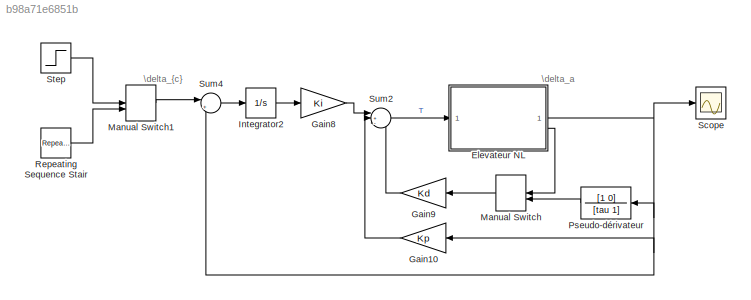
MODEL slx_b98a71e6851b
KIND model
CONFIG AbsTol = auto
CONFIG EnableMultiTasking = on
CONFIG FixedStep = auto
CONFIG MaxStep = auto
CONFIG MinStep = auto
CONFIG RelTol = 1e-3
CONFIG SampleTimeConstraint = Unconstrained
CONFIG SolverName = ode45
CONFIG StartTime = 0.0
CONFIG StopTime = 10
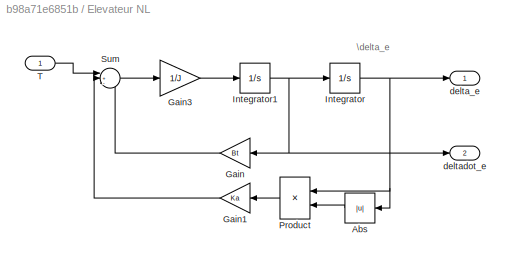
BLOCK [SubSystem] Elevateur NL
BLOCK [Abs] Elevateur NL/Abs
  SaturateOnIntegerOverflow = off
BLOCK [Gain] Elevateur NL/Gain
  Gain = Bt
BLOCK [Gain] Elevateur NL/Gain1
  Gain = Ka
BLOCK [Gain] Elevateur NL/Gain3
  Gain = 1/J
BLOCK [Integrator] Elevateur NL/Integrator
BLOCK [Integrator] Elevateur NL/Integrator1
BLOCK [Product] Elevateur NL/Product
BLOCK [Sum] Elevateur NL/Sum
  Inputs = |+--
BLOCK [Inport] Elevateur NL/T
BLOCK [Outport] Elevateur NL/delta_e
  VectorParamsAs1DForOutWhenUnconnected = off
BLOCK [Outport] Elevateur NL/deltadot_e
  Port = 2
  VectorParamsAs1DForOutWhenUnconnected = off
BLOCK [Gain] Gain10
  Gain = Kp
BLOCK [Gain] Gain8
  Gain = Ki
BLOCK [Gain] Gain9
  Gain = Kd
BLOCK [Integrator] Integrator2
BLOCK [ManualSwitch] Manual Switch
BLOCK [ManualSwitch] Manual Switch1
BLOCK [TransferFcn] Pseudo-dérivateur
  Denominator = [tau 1]
  Numerator = [1 0]
BLOCK [Reference] Repeating Sequence Stair  REF=simulink/Sources/Repeating
Sequence
Stair
  SourceBlock = simulink/Sources/Repeating\nSequence\nStair
  SourceType = Repeating Sequence Stair
BLOCK [Scope] Scope
  Floating = off
  NumInputPorts = 1
  ScopeSpecificationString = Simulink.scopes.TimeScopeBlockCfg('CurrentConfiguration', extmgr.ConfigurationSet(extmgr.Configuration('Core','General UI',true),extmgr.Configuration('Core','Source UI',true),extmgr.Configuration('Sources','WiredSimulink',true,'DataLogging',true,'DataLoggingVariableName','Y','DataLoggingSaveFormat','Array','SampleTime','0.01','DataLoggingDecimation','1','DataLoggingDecimateData',true),extmgr.Confi...<+1672ch>
BLOCK [Step] Step
  SampleTime = 0
  Time = 0
BLOCK [Sum] Sum2
  Inputs = |+--
BLOCK [Sum] Sum4
  Inputs = |+-
ANNOTATION (root): \delta_a
ANNOTATION (root): \delta_{c}
ANNOTATION Elevateur NL: \delta_e
LINE Elevateur NL/Abs:1 -> Elevateur NL/Product:2
LINE Elevateur NL/Gain1:1 -> Elevateur NL/Sum:2
LINE Elevateur NL/Gain3:1 -> Elevateur NL/Integrator1:1
LINE Elevateur NL/Gain:1 -> Elevateur NL/Sum:3
NET Elevateur NL/Integrator1:1 -> Elevateur NL/Gain:1, Elevateur NL/Integrator:1, Elevateur NL/deltadot_e:1
NET Elevateur NL/Integrator:1 -> Elevateur NL/Abs:1, Elevateur NL/Product:1, Elevateur NL/delta_e:1
LINE Elevateur NL/Product:1 -> Elevateur NL/Gain1:1
LINE Elevateur NL/Sum:1 -> Elevateur NL/Gain3:1
LINE Elevateur NL/T:1 -> Elevateur NL/Sum:1
NET Elevateur NL:1 -> Gain10:1, Pseudo-dérivateur:1, Scope:1, Sum4:2
LINE Elevateur NL:2 -> Manual Switch:1
LINE Gain10:1 -> Sum2:2
LINE Gain8:1 -> Sum2:1
LINE Gain9:1 -> Sum2:3
LINE Integrator2:1 -> Gain8:1
LINE Manual Switch1:1 -> Sum4:1
LINE Manual Switch:1 -> Gain9:1
LINE Pseudo-dérivateur:1 -> Manual Switch:2
LINE Repeating Sequence Stair:1 -> Manual Switch1:2
LINE Step:1 -> Manual Switch1:1
LINE Sum2:1 -> Elevateur NL:1
LINE Sum4:1 -> Integrator2:1
note: NET lines group one-source signal fan-out (src -> all destinations, sorted); 1:1 wires keep LINE
